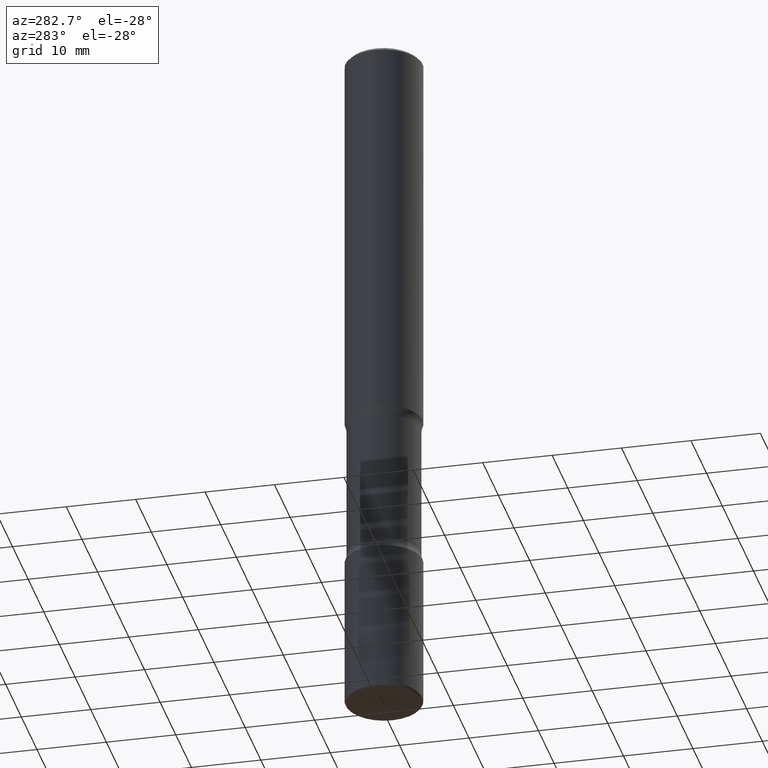
[diagram: clean part render]
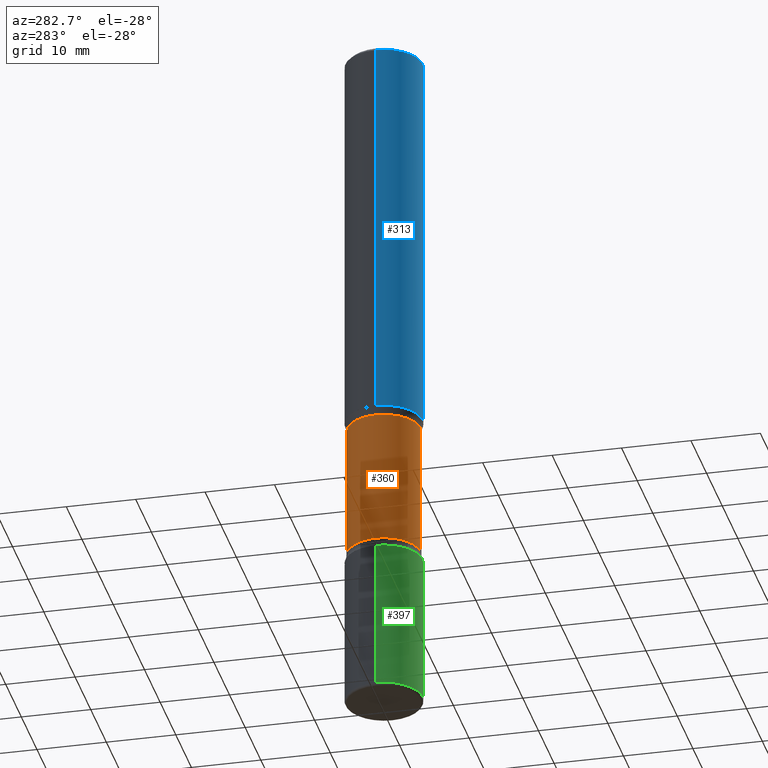
[diagram: same view with three faces highlighted in distinct colors, each labeled with its STEP entity id]
A machine part, auxiliary view with three faces highlighted in distinct colors.
Their STEP definitions:

[orange] entity #360 — the highlighted cylindrical surface (partial cylindrical patch) has radius 5.2784 mm, axis along (0, -0, -1).
#7 = CARTESIAN_POINT ( 'NONE',  ( -1.463215588587155192E-15, -0.2078125000000081712, -2.301134588037354156 ) ) ;
#48 = DIRECTION ( 'NONE',  ( 2.542508401758147997E-29, -3.352515114831814446E-15, -1.000000000000000000 ) ) ;
#74 = CARTESIAN_POINT ( 'NONE',  ( -1.463215588587134090E-15, -0.2078125000000107248, -3.073865411962643179 ) ) ;
#84 = VERTEX_POINT ( 'NONE', #507 ) ;
#108 = FACE_OUTER_BOUND ( 'NONE', #438, .T. ) ;
#123 = ORIENTED_EDGE ( 'NONE', *, *, #537, .F. ) ;
#167 = ORIENTED_EDGE ( 'NONE', *, *, #449, .T. ) ;
#190 = DIRECTION ( 'NONE',  ( 2.542508401758147997E-29, -3.352515114831814446E-15, -1.000000000000000000 ) ) ;
#191 = AXIS2_PLACEMENT_3D ( 'NONE', #426, #220, #382 ) ;
#212 = DIRECTION ( 'NONE',  ( 6.982962677686265133E-15, 1.000000000000000000, -2.629146941270869802E-15 ) ) ;
#220 = DIRECTION ( 'NONE',  ( 2.542508401758147997E-29, -3.352515114831814446E-15, -1.000000000000000000 ) ) ;
#243 = CIRCLE ( 'NONE', #191, 0.2078125000000000389 ) ;
#266 = VERTEX_POINT ( 'NONE', #74 ) ;
#270 = CYLINDRICAL_SURFACE ( 'NONE', #381, 0.2078125000000000111 ) ;
#280 = EDGE_CURVE ( 'NONE', #454, #266, #332, .T. ) ;
#332 = LINE ( 'NONE', #363, #520 ) ;
#334 = EDGE_CURVE ( 'NONE', #454, #84, #243, .T. ) ;
#349 = AXIS2_PLACEMENT_3D ( 'NONE', #392, #485, #527 ) ;
#360 = ADVANCED_FACE ( 'NONE', ( #108 ), #270, .T. ) ;
#363 = CARTESIAN_POINT ( 'NONE',  ( -1.425697240161797519E-15, -0.2078125000000138334, -3.999999999999999556 ) ) ;
#369 = LINE ( 'NONE', #559, #488 ) ;
#376 = CARTESIAN_POINT ( 'NONE',  ( 1.451146931456752440E-15, 0.2078124999999892975, -3.073865411962644068 ) ) ;
#377 = ORIENTED_EDGE ( 'NONE', *, *, #280, .F. ) ;
#381 = AXIS2_PLACEMENT_3D ( 'NONE', #427, #48, #212 ) ;
#382 = DIRECTION ( 'NONE',  ( 6.982962677686265133E-15, 1.000000000000000000, -3.943720411906303717E-15 ) ) ;
#392 = CARTESIAN_POINT ( 'NONE',  ( 7.512079899623131265E-29, -1.073944970459889485E-14, -3.073865411962643623 ) ) ;
#400 = CIRCLE ( 'NONE', #349, 0.2078125000000000111 ) ;
#426 = CARTESIAN_POINT ( 'NONE',  ( 5.547405287495589114E-29, -8.148857937692923452E-15, -2.301134588037355044 ) ) ;
#427 = CARTESIAN_POINT ( 'NONE',  ( 9.866784870866931853E-29, -1.384432990936266734E-14, -4.000000000000000000 ) ) ;
#438 = EDGE_LOOP ( 'NONE', ( #377, #463, #167, #123 ) ) ;
#449 = EDGE_CURVE ( 'NONE', #84, #470, #369, .T. ) ;
#454 = VERTEX_POINT ( 'NONE', #7 ) ;
#463 = ORIENTED_EDGE ( 'NONE', *, *, #334, .T. ) ;
#470 = VERTEX_POINT ( 'NONE', #376 ) ;
#485 = DIRECTION ( 'NONE',  ( 2.542508401758147997E-29, -3.352515114831814446E-15, -1.000000000000000000 ) ) ;
#488 = VECTOR ( 'NONE', #549, 39.37007874015748143 ) ;
#507 = CARTESIAN_POINT ( 'NONE',  ( 1.451146931456732915E-15, 0.2078124999999918787, -2.301134588037355932 ) ) ;
#520 = VECTOR ( 'NONE', #190, 39.37007874015748143 ) ;
#527 = DIRECTION ( 'NONE',  ( 6.982962677686265133E-15, 1.000000000000000000, -2.629146941270869802E-15 ) ) ;
#537 = EDGE_CURVE ( 'NONE', #266, #470, #400, .T. ) ;
#549 = DIRECTION ( 'NONE',  ( 2.542508401758147997E-29, -3.352515114831814446E-15, -1.000000000000000000 ) ) ;
#559 = CARTESIAN_POINT ( 'NONE',  ( 1.451146931456775908E-15, 0.2078124999999861888, -4.000000000000000888 ) ) ;

[blue] entity #313 — the highlighted cylindrical surface (partial cylindrical patch) has radius 5.5563 mm, axis along (-0, 0, 1).
#3 = AXIS2_PLACEMENT_3D ( 'NONE', #550, #346, #181 ) ;
#13 = DIRECTION ( 'NONE',  ( -2.445468806185136877E-29, 3.491481338843145188E-15, 1.000000000000000000 ) ) ;
#15 = ORIENTED_EDGE ( 'NONE', *, *, #327, .F. ) ;
#78 = CARTESIAN_POINT ( 'NONE',  ( 0.000000000000000000, 0.000000000000000000, 0.000000000000000000 ) ) ;
#116 = CIRCLE ( 'NONE', #3, 0.2187499999999998890 ) ;
#118 = EDGE_CURVE ( 'NONE', #401, #228, #460, .T. ) ;
#121 = DIRECTION ( 'NONE',  ( -2.445468806185136597E-29, 3.491481338843145583E-15, 1.000000000000000000 ) ) ;
#163 = VERTEX_POINT ( 'NONE', #177 ) ;
#171 = AXIS2_PLACEMENT_3D ( 'NONE', #496, #386, #375 ) ;
#177 = CARTESIAN_POINT ( 'NONE',  ( -0.2187499999999998890, 1.457693458967006953E-15, -0.02000000000000006981 ) ) ;
#181 = DIRECTION ( 'NONE',  ( 1.000000000000000000, -6.982962677686266711E-15, 0.000000000000000000 ) ) ;
#187 = EDGE_CURVE ( 'NONE', #163, #228, #116, .T. ) ;
#223 = ORIENTED_EDGE ( 'NONE', *, *, #187, .F. ) ;
#225 = VECTOR ( 'NONE', #370, 39.37007874015748143 ) ;
#228 = VERTEX_POINT ( 'NONE', #351 ) ;
#247 = DIRECTION ( 'NONE',  ( 1.000000000000000000, -6.982962677686266711E-15, 4.876176775795935232E-29 ) ) ;
#258 = ORIENTED_EDGE ( 'NONE', *, *, #439, .T. ) ;
#263 = VECTOR ( 'NONE', #13, 39.37007874015748143 ) ;
#293 = CIRCLE ( 'NONE', #171, 0.2187500000000001388 ) ;
#298 = CARTESIAN_POINT ( 'NONE',  ( -0.2187500000000001388, -2.408519085111747378E-15, -2.249999999999999556 ) ) ;
#313 = ADVANCED_FACE ( 'NONE', ( #322 ), #506, .T. ) ;
#322 = FACE_OUTER_BOUND ( 'NONE', #342, .T. ) ;
#327 = EDGE_CURVE ( 'NONE', #384, #163, #391, .T. ) ;
#342 = EDGE_LOOP ( 'NONE', ( #15, #258, #450, #223 ) ) ;
#346 = DIRECTION ( 'NONE',  ( -2.445468806185136597E-29, 3.491481338843145583E-15, 1.000000000000000000 ) ) ;
#351 = CARTESIAN_POINT ( 'NONE',  ( 0.2187499999999998890, -1.570563563789384841E-15, -0.02000000000000006981 ) ) ;
#364 = AXIS2_PLACEMENT_3D ( 'NONE', #78, #121, #247 ) ;
#370 = DIRECTION ( 'NONE',  ( -2.445468806185136877E-29, 3.491481338843145188E-15, 1.000000000000000000 ) ) ;
#375 = DIRECTION ( 'NONE',  ( 1.000000000000000000, -6.982962677686263555E-15, 0.000000000000000000 ) ) ;
#384 = VERTEX_POINT ( 'NONE', #298 ) ;
#386 = DIRECTION ( 'NONE',  ( -2.445468806185136597E-29, 3.491481338843145583E-15, 1.000000000000000000 ) ) ;
#391 = LINE ( 'NONE', #394, #263 ) ;
#394 = CARTESIAN_POINT ( 'NONE',  ( -0.2187500000000000278, 1.554312234475219354E-15, -1.076017050993260762E-29 ) ) ;
#401 = VERTEX_POINT ( 'NONE', #499 ) ;
#415 = CARTESIAN_POINT ( 'NONE',  ( 0.2187500000000000278, -1.527523085743871040E-15, 1.066663669705361025E-29 ) ) ;
#439 = EDGE_CURVE ( 'NONE', #384, #401, #293, .T. ) ;
#450 = ORIENTED_EDGE ( 'NONE', *, *, #118, .T. ) ;
#460 = LINE ( 'NONE', #415, #225 ) ;
#496 = CARTESIAN_POINT ( 'NONE',  ( 5.502304813916556222E-29, -7.855833012397075293E-15, -2.249999999999999556 ) ) ;
#499 = CARTESIAN_POINT ( 'NONE',  ( 0.2187500000000001388, -9.383356098140946925E-15, -2.249999999999999556 ) ) ;
#506 = CYLINDRICAL_SURFACE ( 'NONE', #364, 0.2187500000000000278 ) ;
#550 = CARTESIAN_POINT ( 'NONE',  ( 4.890937612370289799E-31, -6.982962677686315028E-17, -0.02000000000000006981 ) ) ;

[green] entity #397 — the highlighted cylindrical surface (partial cylindrical patch) has radius 5.5563 mm, axis along (-0, 0, 1).
#8 = LINE ( 'NONE', #347, #262 ) ;
#14 = CARTESIAN_POINT ( 'NONE',  ( 7.642090019328550744E-29, -1.091087918388482645E-14, -3.124999999999999112 ) ) ;
#21 = CIRCLE ( 'NONE', #147, 0.2187500000000000833 ) ;
#22 = DIRECTION ( 'NONE',  ( 1.000000000000000000, -6.982962677686269077E-15, 0.000000000000000000 ) ) ;
#39 = ORIENTED_EDGE ( 'NONE', *, *, #544, .F. ) ;
#42 = CYLINDRICAL_SURFACE ( 'NONE', #352, 0.2187500000000001665 ) ;
#45 = DIRECTION ( 'NONE',  ( -2.445468806185136597E-29, 3.491481338843145583E-15, 1.000000000000000000 ) ) ;
#52 = CARTESIAN_POINT ( 'NONE',  ( 0.2187500000000001943, -1.243840226962869808E-14, -3.124999999999999112 ) ) ;
#62 = DIRECTION ( 'NONE',  ( 1.000000000000000000, -6.982962677686265922E-15, 0.000000000000000000 ) ) ;
#81 = CARTESIAN_POINT ( 'NONE',  ( -0.2187500000000003331, -1.235924090081471176E-14, -3.984999999999998987 ) ) ;
#92 = VERTEX_POINT ( 'NONE', #81 ) ;
#95 = FACE_OUTER_BOUND ( 'NONE', #196, .T. ) ;
#97 = DIRECTION ( 'NONE',  ( -2.445468806185136877E-29, 3.491481338843145188E-15, 1.000000000000000000 ) ) ;
#147 = AXIS2_PLACEMENT_3D ( 'NONE', #493, #159, #22 ) ;
#159 = DIRECTION ( 'NONE',  ( -2.445468806185136597E-29, 3.491481338843145583E-15, 1.000000000000000000 ) ) ;
#160 = EDGE_CURVE ( 'NONE', #92, #232, #8, .T. ) ;
#189 = CARTESIAN_POINT ( 'NONE',  ( 0.2187500000000003331, -1.544107622103380570E-14, -3.984999999999998987 ) ) ;
#196 = EDGE_LOOP ( 'NONE', ( #285, #234, #422, #39 ) ) ;
#232 = VERTEX_POINT ( 'NONE', #404 ) ;
#234 = ORIENTED_EDGE ( 'NONE', *, *, #491, .T. ) ;
#262 = VECTOR ( 'NONE', #97, 39.37007874015748143 ) ;
#285 = ORIENTED_EDGE ( 'NONE', *, *, #160, .F. ) ;
#288 = DIRECTION ( 'NONE',  ( -2.445468806185136597E-29, 3.491481338843145583E-15, 1.000000000000000000 ) ) ;
#306 = AXIS2_PLACEMENT_3D ( 'NONE', #14, #288, #62 ) ;
#310 = VECTOR ( 'NONE', #530, 39.37007874015748143 ) ;
#347 = CARTESIAN_POINT ( 'NONE',  ( -0.2187500000000001665, 1.554312234475220340E-15, -1.076017050993261463E-29 ) ) ;
#352 = AXIS2_PLACEMENT_3D ( 'NONE', #379, #45, #385 ) ;
#379 = CARTESIAN_POINT ( 'NONE',  ( 0.000000000000000000, 0.000000000000000000, 0.000000000000000000 ) ) ;
#385 = DIRECTION ( 'NONE',  ( 1.000000000000000000, -6.982962677686266711E-15, 4.876176775795935793E-29 ) ) ;
#388 = EDGE_CURVE ( 'NONE', #416, #512, #462, .T. ) ;
#397 = ADVANCED_FACE ( 'NONE', ( #95 ), #42, .T. ) ;
#404 = CARTESIAN_POINT ( 'NONE',  ( -0.2187500000000001943, -1.085790392511215873E-14, -3.124999999999999112 ) ) ;
#416 = VERTEX_POINT ( 'NONE', #189 ) ;
#422 = ORIENTED_EDGE ( 'NONE', *, *, #388, .T. ) ;
#462 = LINE ( 'NONE', #505, #310 ) ;
#491 = EDGE_CURVE ( 'NONE', #92, #416, #21, .T. ) ;
#493 = CARTESIAN_POINT ( 'NONE',  ( 9.745193192647766827E-29, -1.391355313528993249E-14, -3.984999999999998987 ) ) ;
#505 = CARTESIAN_POINT ( 'NONE',  ( 0.2187500000000001665, -1.527523085743872026E-15, 1.066663669705361725E-29 ) ) ;
#512 = VERTEX_POINT ( 'NONE', #52 ) ;
#530 = DIRECTION ( 'NONE',  ( -2.445468806185136877E-29, 3.491481338843145188E-15, 1.000000000000000000 ) ) ;
#544 = EDGE_CURVE ( 'NONE', #232, #512, #547, .T. ) ;
#547 = CIRCLE ( 'NONE', #306, 0.2187500000000001943 ) ;